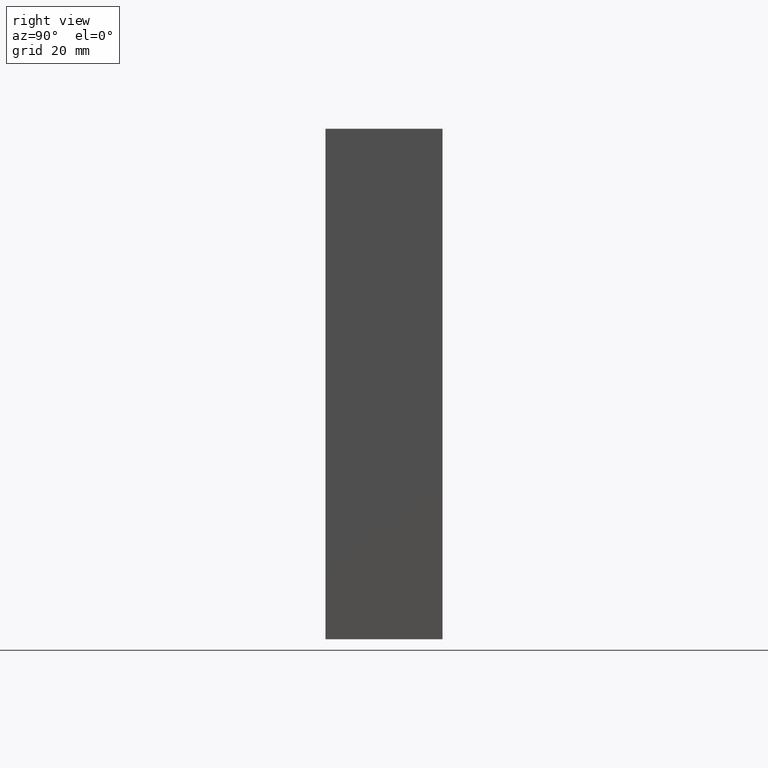
[diagram: clean part render]
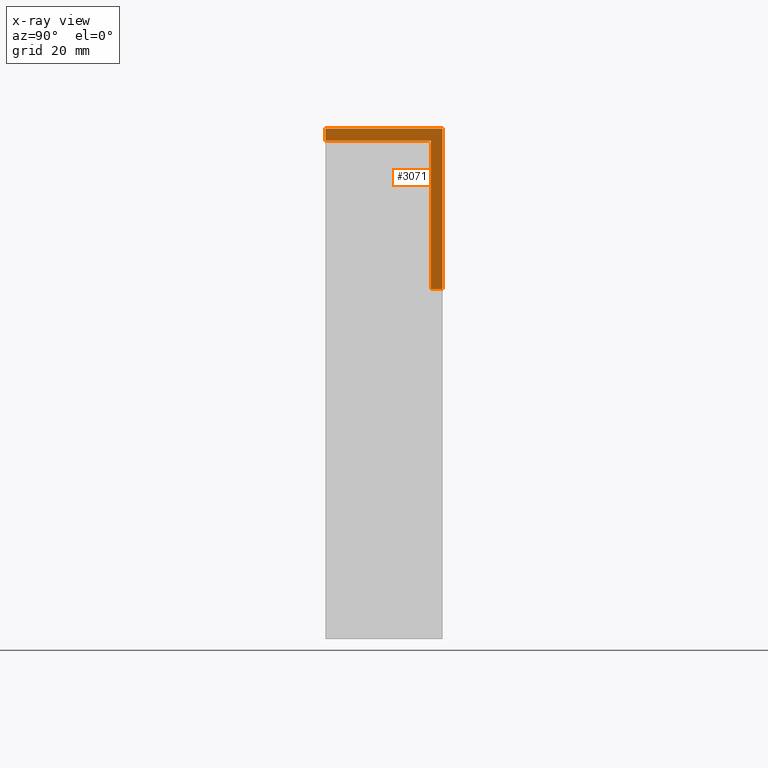
[diagram: x-ray — body ghosted, one internal face saturated and labeled with its STEP entity id]
A machine part, right view, then the same camera in x-ray: the body is ghosted and one INTERNAL B-rep face — a face not visible from any outside direction — is saturated and labeled: STEP entity #3071.
In plain terms, the highlighted planar face has unit normal (1, 0, -0).
Its self-contained STEP definition (entity closure, byte-faithful):
#482 = VERTEX_POINT ( 'NONE', #6044 ) ;
#560 = CARTESIAN_POINT ( 'NONE',  ( 27.24999999999999300, 25.00000000000000000, -54.50000000000000000 ) ) ;
#861 = VERTEX_POINT ( 'NONE', #8419 ) ;
#942 = LINE ( 'NONE', #3764, #11475 ) ;
#1755 = EDGE_LOOP ( 'NONE', ( #14371, #12878, #3230, #15118, #4998, #9883 ) ) ;
#1956 = AXIS2_PLACEMENT_3D ( 'NONE', #6417, #14807, #14595 ) ;
#3071 = ADVANCED_FACE ( 'NONE', ( #7200 ), #13601, .F. ) ;
#3198 = DIRECTION ( 'NONE',  ( -0.0000000000000000000, -1.000000000000000000, -0.0000000000000000000 ) ) ;
#3230 = ORIENTED_EDGE ( 'NONE', *, *, #4929, .F. ) ;
#3236 = LINE ( 'NONE', #5082, #10560 ) ;
#3326 = EDGE_CURVE ( 'NONE', #482, #12760, #5702, .T. ) ;
#3764 = CARTESIAN_POINT ( 'NONE',  ( 27.24999999999999600, 25.00000000000000000, -20.25000000000000400 ) ) ;
#4619 = VERTEX_POINT ( 'NONE', #7344 ) ;
#4929 = EDGE_CURVE ( 'NONE', #861, #4619, #3236, .T. ) ;
#4998 = ORIENTED_EDGE ( 'NONE', *, *, #11982, .T. ) ;
#5082 = CARTESIAN_POINT ( 'NONE',  ( 27.25000000000000000, 22.50000000000000700, -3.469446951953615000E-015 ) ) ;
#5089 = CARTESIAN_POINT ( 'NONE',  ( 27.25000000000000700, 25.00000000000000000, -20.25000000000000400 ) ) ;
#5581 = LINE ( 'NONE', #12694, #7648 ) ;
#5702 = LINE ( 'NONE', #8040, #13966 ) ;
#5825 = EDGE_CURVE ( 'NONE', #8796, #4619, #942, .T. ) ;
#6044 = CARTESIAN_POINT ( 'NONE',  ( 27.24999999999999300, 25.00000000000000000, -54.50000000000000000 ) ) ;
#6417 = CARTESIAN_POINT ( 'NONE',  ( 27.24999999999999300, 25.00000000000000000, -54.50000000000000000 ) ) ;
#6794 = CARTESIAN_POINT ( 'NONE',  ( 27.24999999999999300, 0.0000000000000000000, -54.50000000000000000 ) ) ;
#6818 = CARTESIAN_POINT ( 'NONE',  ( 27.24999999999999300, 0.0000000000000000000, -54.50000000000000000 ) ) ;
#7060 = EDGE_CURVE ( 'NONE', #861, #13096, #5581, .T. ) ;
#7200 = FACE_OUTER_BOUND ( 'NONE', #1755, .T. ) ;
#7344 = CARTESIAN_POINT ( 'NONE',  ( 27.25000000000000700, 22.50000000000000400, -20.25000000000000400 ) ) ;
#7648 = VECTOR ( 'NONE', #13878, 1000.000000000000000 ) ;
#8040 = CARTESIAN_POINT ( 'NONE',  ( 27.24999999999999300, 25.00000000000000000, -54.50000000000000000 ) ) ;
#8054 = DIRECTION ( 'NONE',  ( -1.273191542001326800E-016, -0.0000000000000000000, -1.000000000000000000 ) ) ;
#8419 = CARTESIAN_POINT ( 'NONE',  ( 27.24999999999999300, 22.50000000000000700, -52.00000000000000700 ) ) ;
#8796 = VERTEX_POINT ( 'NONE', #5089 ) ;
#9883 = ORIENTED_EDGE ( 'NONE', *, *, #3326, .F. ) ;
#10438 = CARTESIAN_POINT ( 'NONE',  ( 27.24999999999999300, 0.0000000000000000000, -52.00000000000000700 ) ) ;
#10560 = VECTOR ( 'NONE', #14580, 1000.000000000000000 ) ;
#10564 = VECTOR ( 'NONE', #12321, 1000.000000000000000 ) ;
#11475 = VECTOR ( 'NONE', #12156, 1000.000000000000000 ) ;
#11982 = EDGE_CURVE ( 'NONE', #13096, #12760, #13234, .T. ) ;
#12156 = DIRECTION ( 'NONE',  ( 0.0000000000000000000, -1.000000000000000000, 0.0000000000000000000 ) ) ;
#12321 = DIRECTION ( 'NONE',  ( -1.273191542001326800E-016, -0.0000000000000000000, -1.000000000000000000 ) ) ;
#12694 = CARTESIAN_POINT ( 'NONE',  ( 27.24999999999999300, 141.2755348299890600, -52.00000000000000700 ) ) ;
#12760 = VERTEX_POINT ( 'NONE', #6794 ) ;
#12878 = ORIENTED_EDGE ( 'NONE', *, *, #5825, .T. ) ;
#13096 = VERTEX_POINT ( 'NONE', #10438 ) ;
#13234 = LINE ( 'NONE', #6818, #14359 ) ;
#13601 = PLANE ( 'NONE',  #1956 ) ;
#13878 = DIRECTION ( 'NONE',  ( -0.0000000000000000000, -1.000000000000000000, -0.0000000000000000000 ) ) ;
#13966 = VECTOR ( 'NONE', #3198, 1000.000000000000000 ) ;
#14359 = VECTOR ( 'NONE', #8054, 1000.000000000000000 ) ;
#14371 = ORIENTED_EDGE ( 'NONE', *, *, #14402, .F. ) ;
#14402 = EDGE_CURVE ( 'NONE', #8796, #482, #14682, .T. ) ;
#14580 = DIRECTION ( 'NONE',  ( 1.273191542001326800E-016, -0.0000000000000000000, 1.000000000000000000 ) ) ;
#14595 = DIRECTION ( 'NONE',  ( 1.273191542001326800E-016, 0.0000000000000000000, 1.000000000000000000 ) ) ;
#14682 = LINE ( 'NONE', #560, #10564 ) ;
#14807 = DIRECTION ( 'NONE',  ( -1.000000000000000000, 0.0000000000000000000, 1.273191542001326800E-016 ) ) ;
#15118 = ORIENTED_EDGE ( 'NONE', *, *, #7060, .T. ) ;